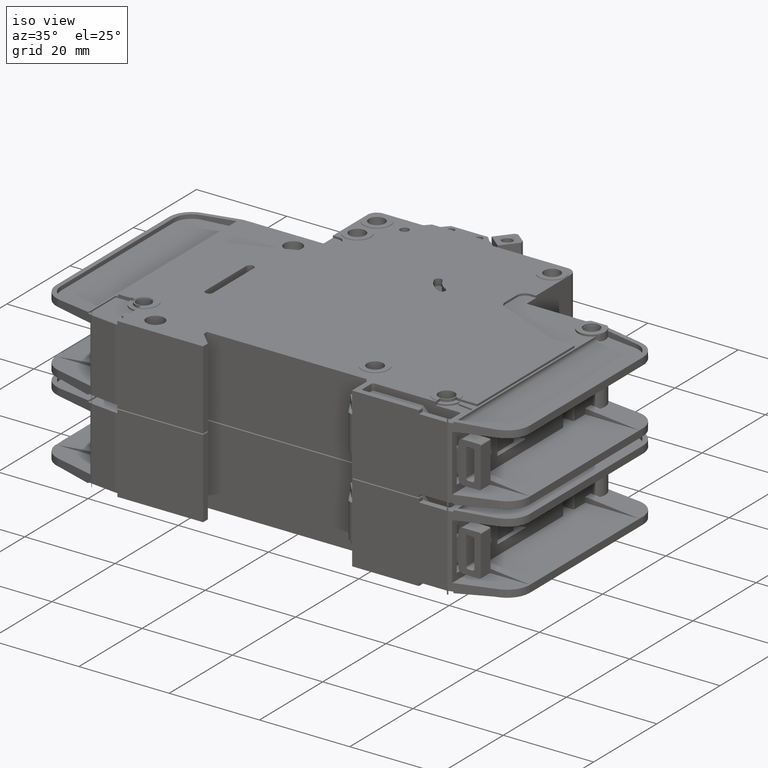
[diagram: clean part render]
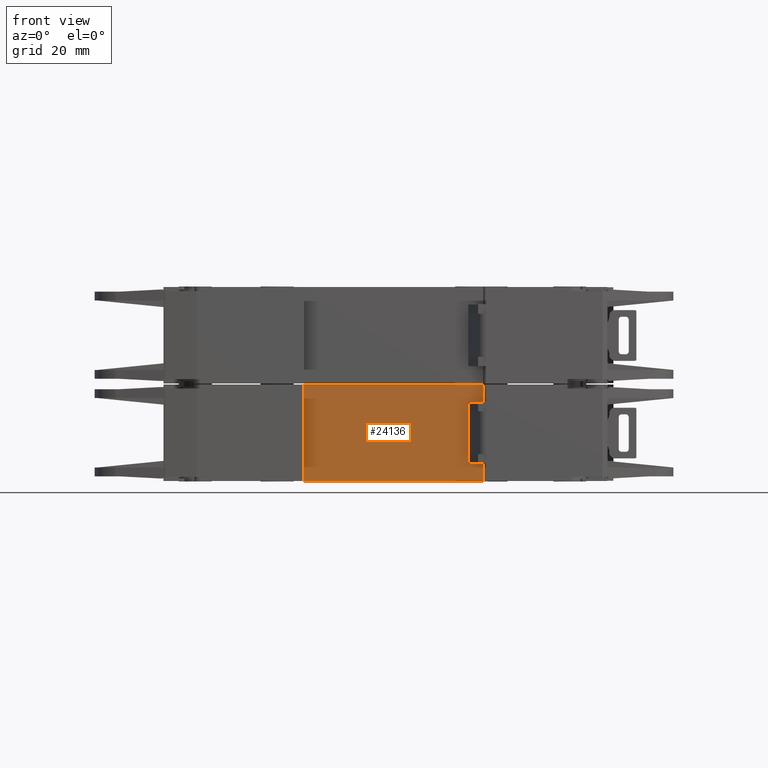
[diagram: tour spotlight — one face highlighted and labeled with its STEP entity id]
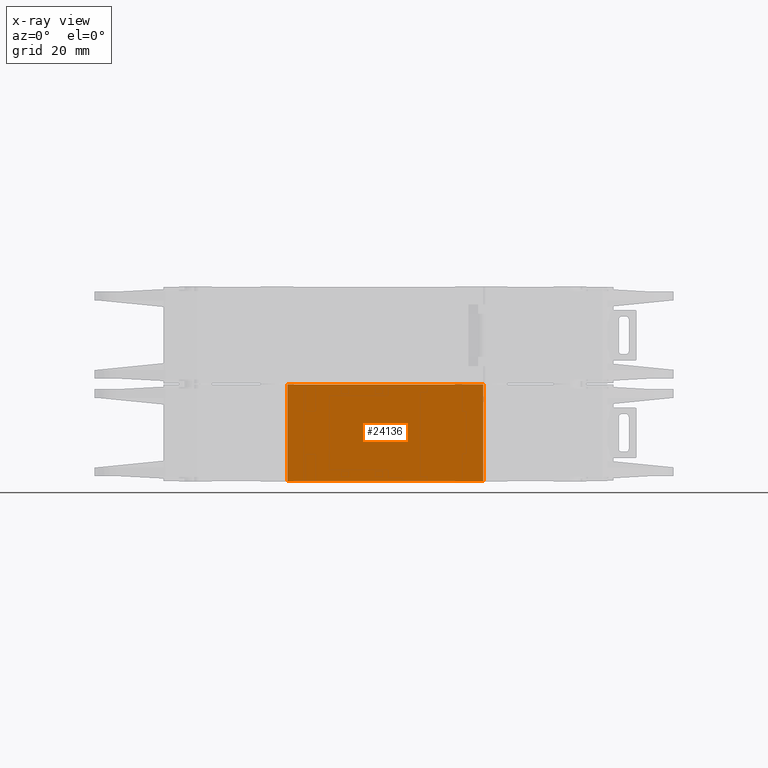
[diagram: x-ray of the same camera — body ghosted, this tour face saturated]
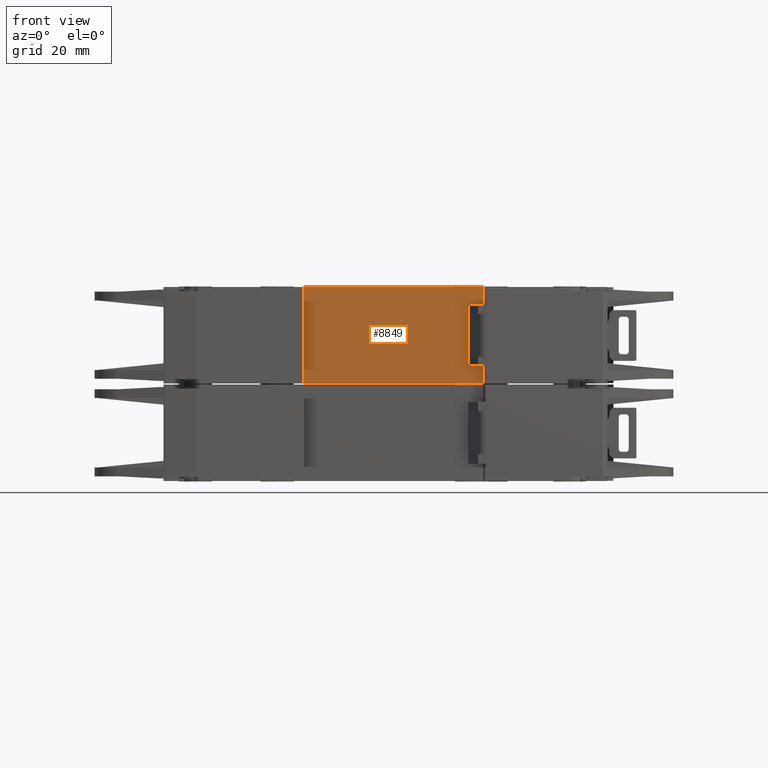
[diagram: tour spotlight — one face highlighted and labeled with its STEP entity id]
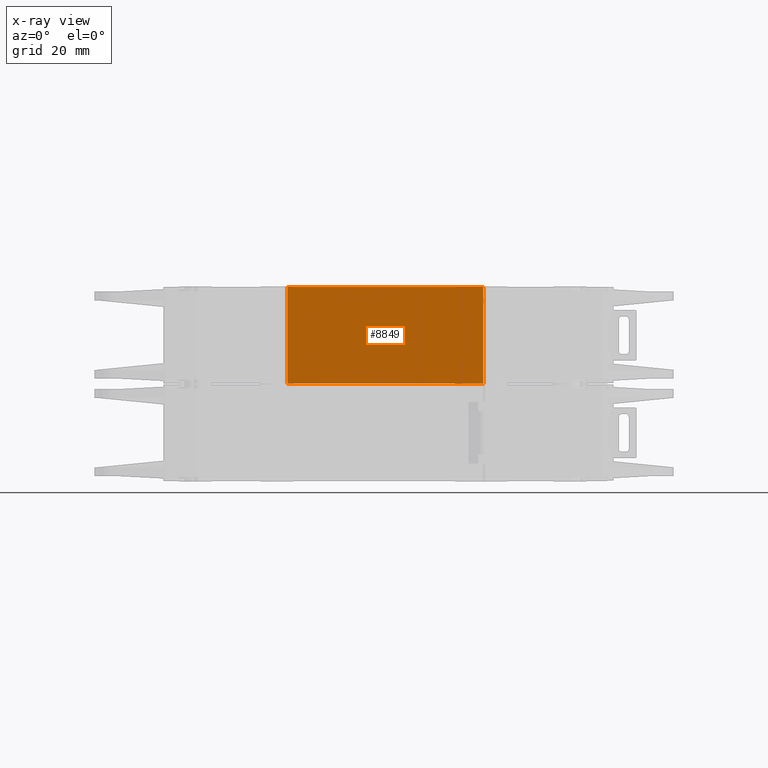
[diagram: x-ray of the same camera — body ghosted, this tour face saturated]
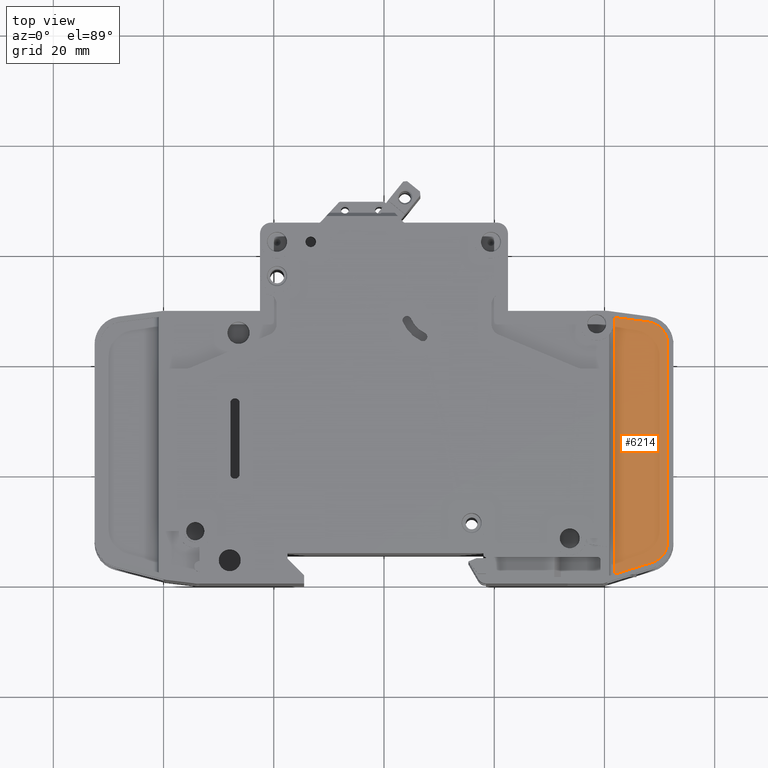
[diagram: tour spotlight — one face highlighted and labeled with its STEP entity id]
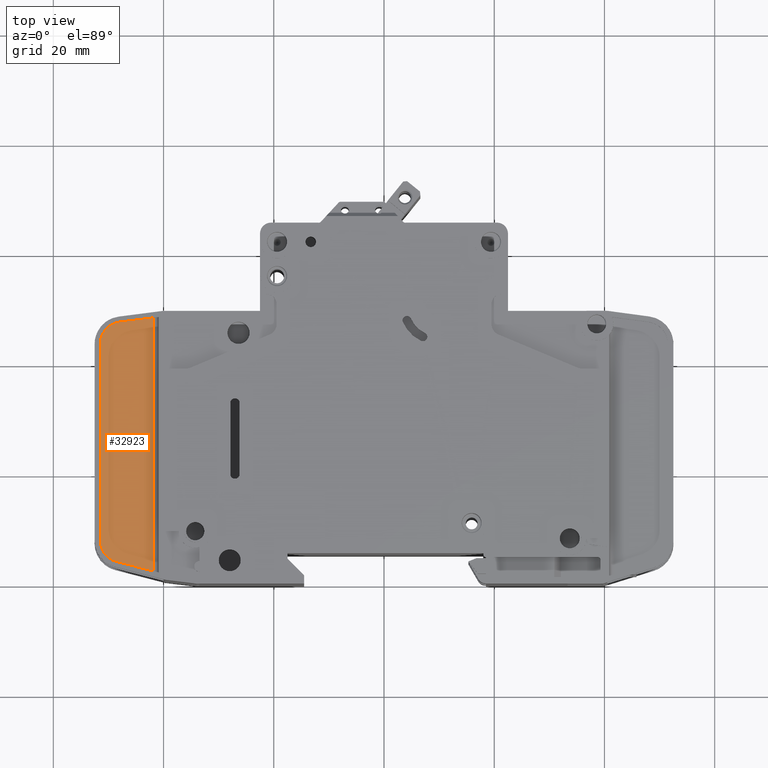
[diagram: tour spotlight — one face highlighted and labeled with its STEP entity id]
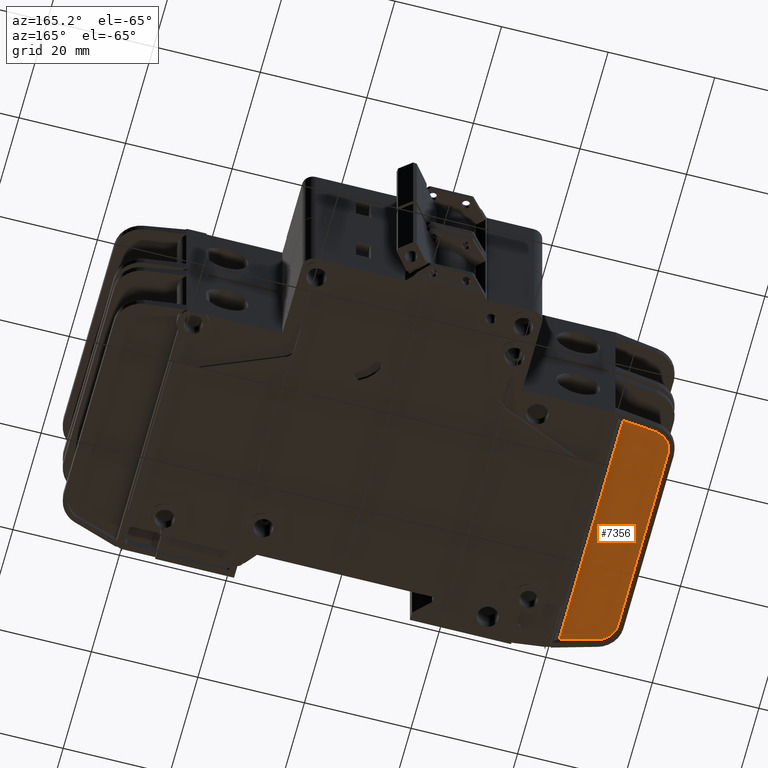
[diagram: tour spotlight — one face highlighted and labeled with its STEP entity id]
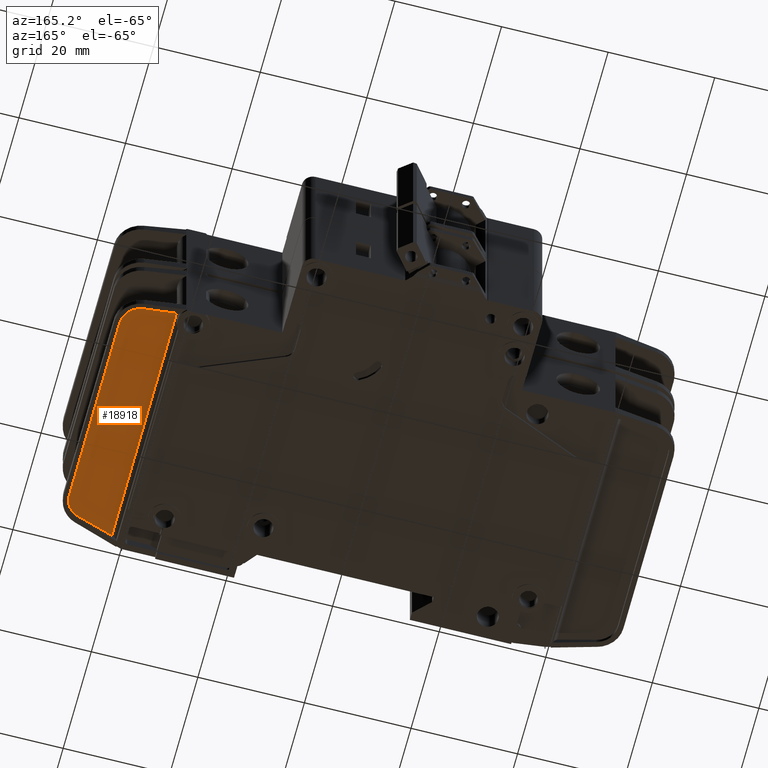
[diagram: tour spotlight — one face highlighted and labeled with its STEP entity id]
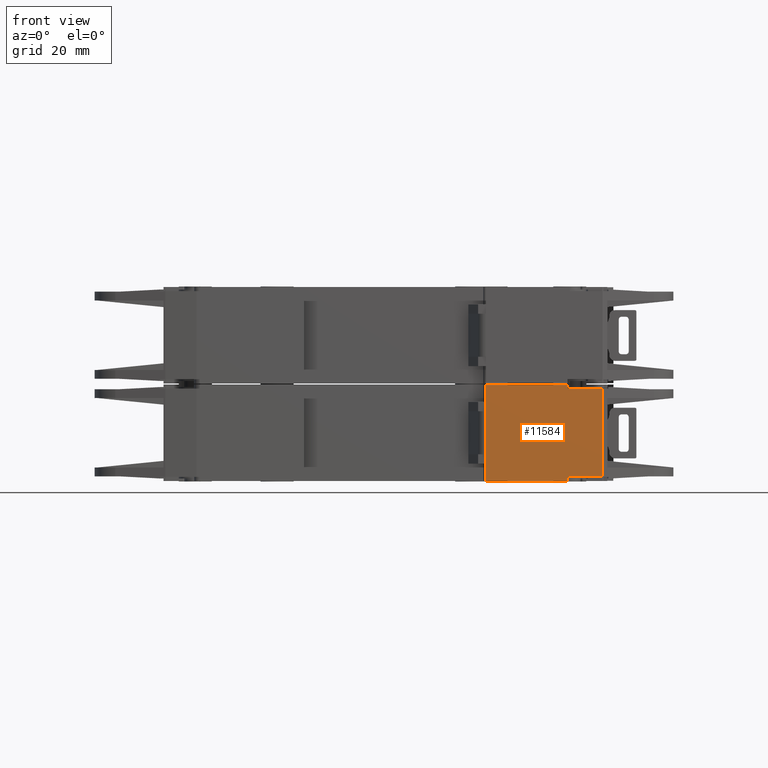
[diagram: tour spotlight — one face highlighted and labeled with its STEP entity id]
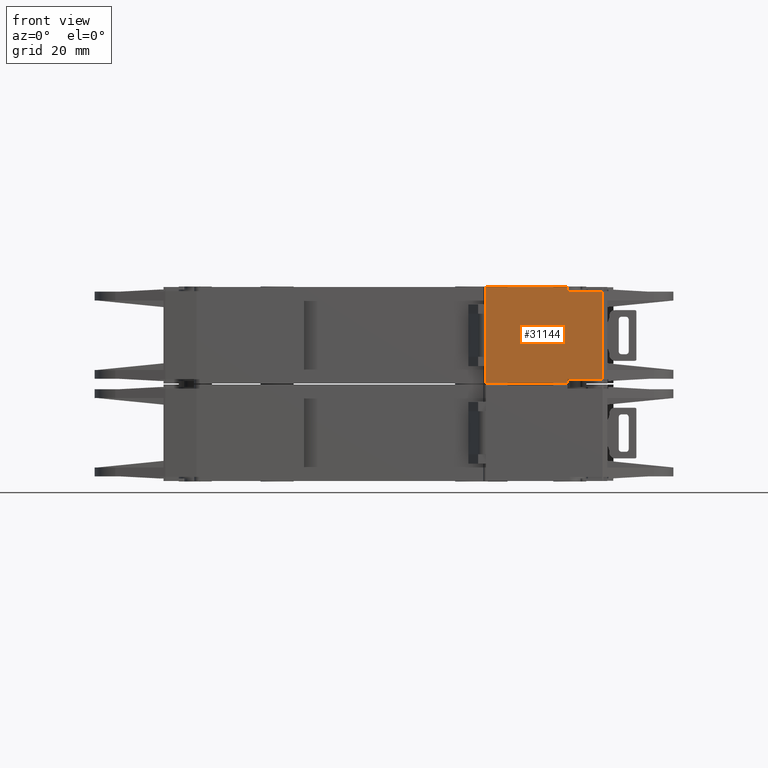
[diagram: tour spotlight — one face highlighted and labeled with its STEP entity id]
A machine part: a face-by-face anatomy tour. The part has 1568 B-rep faces; the first image is the clean iso view, then the 8 largest visible faces are spotlighted one at a time (largest first), each with its STEP entity span.

Face 1 — front view, entity #24136. An x-ray twin of the same camera follows (body ghosted, this face saturated) — the face is partly hidden behind the body. In plain terms, the highlighted planar face has unit normal (0, 1, -0).
Definition (entity closure, byte-faithful):
#119 = AXIS2_PLACEMENT_3D ( 'NONE', #14255, #48784, #26044 ) ;
#2650 = LINE ( 'NONE', #5789, #32858 ) ;
#3861 = VECTOR ( 'NONE', #18849, 1000.000000000000000 ) ;
#5789 = CARTESIAN_POINT ( 'NONE',  ( 58.00000000000000700, 5.500000000000038200, -8.949999999999999300 ) ) ;
#5883 = DIRECTION ( 'NONE',  ( -0.0000000000000000000, -0.0000000000000000000, -1.000000000000000000 ) ) ;
#6616 = VERTEX_POINT ( 'NONE', #16865 ) ;
#7417 = CARTESIAN_POINT ( 'NONE',  ( 58.00000000000000700, 5.500000000000038200, -8.949999999999999300 ) ) ;
#8610 = EDGE_CURVE ( 'NONE', #42969, #6616, #23976, .T. ) ;
#9029 = EDGE_CURVE ( 'NONE', #47614, #42969, #34703, .T. ) ;
#14255 = CARTESIAN_POINT ( 'NONE',  ( 3.342964967192980400E-014, 5.500000000000409500, -8.949999999999999300 ) ) ;
#14584 = PLANE ( 'NONE',  #119 ) ;
#15113 = CARTESIAN_POINT ( 'NONE',  ( 3.342964967192980400E-014, 5.500000000000409500, -26.45000000000000300 ) ) ;
#15964 = CARTESIAN_POINT ( 'NONE',  ( 22.50000000000023800, 5.500000000000264700, -26.45000000000000300 ) ) ;
#16516 = CARTESIAN_POINT ( 'NONE',  ( 3.342964967192980400E-014, 5.500000000000409500, -8.949999999999999300 ) ) ;
#16865 = CARTESIAN_POINT ( 'NONE',  ( 58.00000000000000700, 5.500000000000038200, -26.45000000000000300 ) ) ;
#18849 = DIRECTION ( 'NONE',  ( 1.000000000000000000, -6.401373953604597600E-015, 0.0000000000000000000 ) ) ;
#20058 = EDGE_LOOP ( 'NONE', ( #22098, #30878, #46913, #46366 ) ) ;
#22098 = ORIENTED_EDGE ( 'NONE', *, *, #8610, .T. ) ;
#23201 = VERTEX_POINT ( 'NONE', #7417 ) ;
#23976 = LINE ( 'NONE', #15113, #3861 ) ;
#24136 = ADVANCED_FACE ( 'NONE', ( #36250 ), #14584, .F. ) ;
#24607 = VECTOR ( 'NONE', #5883, 1000.000000000000000 ) ;
#26044 = DIRECTION ( 'NONE',  ( -1.000000000000000000, 6.401373953604598300E-015, 0.0000000000000000000 ) ) ;
#28492 = DIRECTION ( 'NONE',  ( -0.0000000000000000000, -0.0000000000000000000, -1.000000000000000000 ) ) ;
#30878 = ORIENTED_EDGE ( 'NONE', *, *, #38446, .F. ) ;
#31361 = CARTESIAN_POINT ( 'NONE',  ( 22.50000000000023800, 5.500000000000264700, -8.949999999999999300 ) ) ;
#32350 = EDGE_CURVE ( 'NONE', #47614, #23201, #44738, .T. ) ;
#32858 = VECTOR ( 'NONE', #28492, 1000.000000000000000 ) ;
#34640 = VECTOR ( 'NONE', #39338, 1000.000000000000000 ) ;
#34703 = LINE ( 'NONE', #43691, #24607 ) ;
#36250 = FACE_OUTER_BOUND ( 'NONE', #20058, .T. ) ;
#38446 = EDGE_CURVE ( 'NONE', #23201, #6616, #2650, .T. ) ;
#39338 = DIRECTION ( 'NONE',  ( 1.000000000000000000, -6.401373953604597600E-015, 0.0000000000000000000 ) ) ;
#42969 = VERTEX_POINT ( 'NONE', #15964 ) ;
#43691 = CARTESIAN_POINT ( 'NONE',  ( 22.50000000000023800, 5.500000000000264700, -8.949999999999999300 ) ) ;
#44738 = LINE ( 'NONE', #16516, #34640 ) ;
#46366 = ORIENTED_EDGE ( 'NONE', *, *, #9029, .T. ) ;
#46913 = ORIENTED_EDGE ( 'NONE', *, *, #32350, .F. ) ;
#47614 = VERTEX_POINT ( 'NONE', #31361 ) ;
#48784 = DIRECTION ( 'NONE',  ( 6.401373953604598300E-015, 1.000000000000000000, -0.0000000000000000000 ) ) ;

Face 2 — front view, entity #8849. An x-ray twin of the same camera follows (body ghosted, this face saturated) — the face is partly hidden behind the body. In plain terms, the highlighted planar face has unit normal (0, 1, -0).
Definition (entity closure, byte-faithful):
#899 = DIRECTION ( 'NONE',  ( 1.000000000000000000, -6.401373953604597600E-015, 0.0000000000000000000 ) ) ;
#1002 = VECTOR ( 'NONE', #46928, 1000.000000000000000 ) ;
#2508 = VECTOR ( 'NONE', #12513, 1000.000000000000000 ) ;
#3638 = EDGE_CURVE ( 'NONE', #18141, #33290, #43248, .T. ) ;
#7632 = EDGE_CURVE ( 'NONE', #18141, #32505, #41328, .T. ) ;
#8383 = CARTESIAN_POINT ( 'NONE',  ( 22.50000000000024200, 5.500000000000264700, -8.750000000000000000 ) ) ;
#8737 = CARTESIAN_POINT ( 'NONE',  ( 58.00000000000000700, 5.500000000000038200, 8.750000000000000000 ) ) ;
#8849 = ADVANCED_FACE ( 'NONE', ( #24029 ), #28068, .F. ) ;
#12513 = DIRECTION ( 'NONE',  ( -0.0000000000000000000, -0.0000000000000000000, -1.000000000000000000 ) ) ;
#12951 = VECTOR ( 'NONE', #38894, 1000.000000000000000 ) ;
#13090 = DIRECTION ( 'NONE',  ( 6.401373953604598300E-015, 1.000000000000000000, -0.0000000000000000000 ) ) ;
#13412 = ORIENTED_EDGE ( 'NONE', *, *, #40648, .F. ) ;
#15069 = CARTESIAN_POINT ( 'NONE',  ( 22.50000000000024200, 5.500000000000264700, 8.750000000000000000 ) ) ;
#18141 = VERTEX_POINT ( 'NONE', #15069 ) ;
#20317 = CARTESIAN_POINT ( 'NONE',  ( 3.520755674482790200E-014, 5.500000000000409500, 8.750000000000000000 ) ) ;
#20410 = VECTOR ( 'NONE', #899, 1000.000000000000000 ) ;
#22627 = ORIENTED_EDGE ( 'NONE', *, *, #37649, .T. ) ;
#24029 = FACE_OUTER_BOUND ( 'NONE', #29301, .T. ) ;
#24363 = CARTESIAN_POINT ( 'NONE',  ( 3.520755674482790200E-014, 5.500000000000409500, 8.750000000000000000 ) ) ;
#25169 = VERTEX_POINT ( 'NONE', #36895 ) ;
#27389 = CARTESIAN_POINT ( 'NONE',  ( 3.520755674482790200E-014, 5.500000000000409500, -8.750000000000000000 ) ) ;
#28068 = PLANE ( 'NONE',  #47238 ) ;
#28203 = LINE ( 'NONE', #27389, #20410 ) ;
#29301 = EDGE_LOOP ( 'NONE', ( #22627, #13412, #46486, #34581 ) ) ;
#32505 = VERTEX_POINT ( 'NONE', #48744 ) ;
#32712 = LINE ( 'NONE', #8737, #2508 ) ;
#33290 = VERTEX_POINT ( 'NONE', #8383 ) ;
#34581 = ORIENTED_EDGE ( 'NONE', *, *, #3638, .T. ) ;
#36895 = CARTESIAN_POINT ( 'NONE',  ( 58.00000000000000700, 5.500000000000038200, -8.750000000000000000 ) ) ;
#37649 = EDGE_CURVE ( 'NONE', #33290, #25169, #28203, .T. ) ;
#38894 = DIRECTION ( 'NONE',  ( -0.0000000000000000000, -0.0000000000000000000, -1.000000000000000000 ) ) ;
#39673 = DIRECTION ( 'NONE',  ( -1.000000000000000000, 6.401373953604598300E-015, 0.0000000000000000000 ) ) ;
#40648 = EDGE_CURVE ( 'NONE', #32505, #25169, #32712, .T. ) ;
#41328 = LINE ( 'NONE', #20317, #1002 ) ;
#42678 = CARTESIAN_POINT ( 'NONE',  ( 22.50000000000024200, 5.500000000000264700, 8.750000000000000000 ) ) ;
#43248 = LINE ( 'NONE', #42678, #12951 ) ;
#46486 = ORIENTED_EDGE ( 'NONE', *, *, #7632, .F. ) ;
#46928 = DIRECTION ( 'NONE',  ( 1.000000000000000000, -6.401373953604597600E-015, 0.0000000000000000000 ) ) ;
#47238 = AXIS2_PLACEMENT_3D ( 'NONE', #24363, #13090, #39673 ) ;
#48744 = CARTESIAN_POINT ( 'NONE',  ( 58.00000000000000700, 5.500000000000038200, 8.750000000000000000 ) ) ;

Face 3 — top view, entity #6214. In plain terms, the highlighted planar face has unit normal (-0, 0, 1).
Definition (entity closure, byte-faithful):
#67 = EDGE_CURVE ( 'NONE', #6031, #5735, #30997, .T. ) ;
#1495 = VERTEX_POINT ( 'NONE', #41371 ) ;
#1987 = ORIENTED_EDGE ( 'NONE', *, *, #32513, .T. ) ;
#3750 = VECTOR ( 'NONE', #18286, 1000.000000000000000 ) ;
#3983 = LINE ( 'NONE', #46793, #31827 ) ;
#4940 = EDGE_CURVE ( 'NONE', #5735, #6924, #3983, .T. ) ;
#4942 = LINE ( 'NONE', #33656, #3750 ) ;
#5458 = DIRECTION ( 'NONE',  ( -0.0000000000000000000, 0.0000000000000000000, 1.000000000000000000 ) ) ;
#5735 = VERTEX_POINT ( 'NONE', #46933 ) ;
#6031 = VERTEX_POINT ( 'NONE', #25206 ) ;
#6214 = ADVANCED_FACE ( 'NONE', ( #8579 ), #22659, .T. ) ;
#6924 = VERTEX_POINT ( 'NONE', #8098 ) ;
#6980 = LINE ( 'NONE', #12826, #36034 ) ;
#7458 = ORIENTED_EDGE ( 'NONE', *, *, #45788, .T. ) ;
#7609 = DIRECTION ( 'NONE',  ( -0.0000000000000000000, 0.0000000000000000000, 1.000000000000000000 ) ) ;
#8098 = CARTESIAN_POINT ( 'NONE',  ( 88.68904278847249100, 3.860862688887578600, 7.000000000000000000 ) ) ;
#8532 = CARTESIAN_POINT ( 'NONE',  ( 81.90000000000306100, 1.435867789140570700, 7.000000000000000000 ) ) ;
#8579 = FACE_OUTER_BOUND ( 'NONE', #49178, .T. ) ;
#11075 = VERTEX_POINT ( 'NONE', #21371 ) ;
#12663 = CARTESIAN_POINT ( 'NONE',  ( 87.50000000000339600, 43.52402657815239500, 7.000000000000000000 ) ) ;
#12746 = DIRECTION ( 'NONE',  ( 0.9547963541768541600, 0.2972606971171723500, 0.0000000000000000000 ) ) ;
#12826 = CARTESIAN_POINT ( 'NONE',  ( 91.50000000000395100, 0.0000000000000000000, 7.000000000000000000 ) ) ;
#13474 = AXIS2_PLACEMENT_3D ( 'NONE', #28163, #5458, #31949 ) ;
#15051 = CARTESIAN_POINT ( 'NONE',  ( 0.0000000000000000000, 0.0000000000000000000, 7.000000000000000000 ) ) ;
#16443 = DIRECTION ( 'NONE',  ( 1.000000000000000000, 0.0000000000000000000, 0.0000000000000000000 ) ) ;
#18286 = DIRECTION ( 'NONE',  ( -0.9911796891102210300, 0.1325248048305129300, 0.0000000000000000000 ) ) ;
#18816 = EDGE_CURVE ( 'NONE', #6924, #11075, #41122, .T. ) ;
#20432 = DIRECTION ( 'NONE',  ( 0.0000000000000000000, 1.000000000000000000, -0.0000000000000000000 ) ) ;
#21371 = CARTESIAN_POINT ( 'NONE',  ( 91.50000000000395100, 7.680048105595450800, 7.000000000000000000 ) ) ;
#22659 = PLANE ( 'NONE',  #44883 ) ;
#25206 = CARTESIAN_POINT ( 'NONE',  ( 81.90000000000317500, 48.30836483603661700, 7.000000000000000000 ) ) ;
#26078 = VERTEX_POINT ( 'NONE', #31319 ) ;
#27605 = DIRECTION ( 'NONE',  ( -2.529597909461247700E-015, -1.000000000000000000, 0.0000000000000000000 ) ) ;
#28163 = CARTESIAN_POINT ( 'NONE',  ( 87.50000000000339600, 7.680048105595450800, 7.000000000000000000 ) ) ;
#29211 = ORIENTED_EDGE ( 'NONE', *, *, #18816, .T. ) ;
#29815 = VECTOR ( 'NONE', #27605, 1000.000000000000000 ) ;
#30997 = LINE ( 'NONE', #8532, #29815 ) ;
#31319 = CARTESIAN_POINT ( 'NONE',  ( 91.50000000000395100, 43.52402657815239500, 7.000000000000000000 ) ) ;
#31827 = VECTOR ( 'NONE', #12746, 1000.000000000000000 ) ;
#31949 = DIRECTION ( 'NONE',  ( 1.000000000000000000, 0.0000000000000000000, 0.0000000000000000000 ) ) ;
#32513 = EDGE_CURVE ( 'NONE', #1495, #6031, #4942, .T. ) ;
#33656 = CARTESIAN_POINT ( 'NONE',  ( 7.783983768871183700, 58.21798132007016600, 7.000000000000000000 ) ) ;
#34159 = DIRECTION ( 'NONE',  ( 1.000000000000000000, 0.0000000000000000000, 0.0000000000000000000 ) ) ;
#35059 = ORIENTED_EDGE ( 'NONE', *, *, #43031, .T. ) ;
#36034 = VECTOR ( 'NONE', #20432, 1000.000000000000000 ) ;
#36289 = ORIENTED_EDGE ( 'NONE', *, *, #4940, .T. ) ;
#39256 = DIRECTION ( 'NONE',  ( -0.0000000000000000000, 0.0000000000000000000, 1.000000000000000000 ) ) ;
#39680 = AXIS2_PLACEMENT_3D ( 'NONE', #12663, #39256, #16443 ) ;
#41122 = CIRCLE ( 'NONE', #13474, 4.000000000000558700 ) ;
#41371 = CARTESIAN_POINT ( 'NONE',  ( 88.03009921932518000, 47.48874533459019900, 7.000000000000000000 ) ) ;
#43031 = EDGE_CURVE ( 'NONE', #26078, #1495, #46729, .T. ) ;
#44883 = AXIS2_PLACEMENT_3D ( 'NONE', #15051, #7609, #34159 ) ;
#45788 = EDGE_CURVE ( 'NONE', #11075, #26078, #6980, .T. ) ;
#45789 = ORIENTED_EDGE ( 'NONE', *, *, #67, .T. ) ;
#46729 = CIRCLE ( 'NONE', #39680, 3.999999999998740600 ) ;
#46793 = CARTESIAN_POINT ( 'NONE',  ( 6.741108373171290000, -21.65232659492135500, 7.000000000000000000 ) ) ;
#46933 = CARTESIAN_POINT ( 'NONE',  ( 81.90000000000306100, 1.747201924233124300, 7.000000000000000000 ) ) ;
#49178 = EDGE_LOOP ( 'NONE', ( #1987, #45789, #36289, #29211, #7458, #35059 ) ) ;

Face 4 — top view, entity #32923. In plain terms, the highlighted planar face has unit normal (-0, 0, 1).
Definition (entity closure, byte-faithful):
#173 = EDGE_CURVE ( 'NONE', #14633, #34577, #16109, .T. ) ;
#1494 = CARTESIAN_POINT ( 'NONE',  ( -7.500000000020468100, 43.50063800076245700, 7.000000000000000000 ) ) ;
#1751 = EDGE_LOOP ( 'NONE', ( #24028, #37489, #22584, #44324, #13104, #47665 ) ) ;
#2660 = VECTOR ( 'NONE', #11168, 1000.000000000000000 ) ;
#4025 = DIRECTION ( 'NONE',  ( 0.0000000000000000000, 1.000000000000000000, -0.0000000000000000000 ) ) ;
#5288 = DIRECTION ( 'NONE',  ( 1.000000000000000000, 0.0000000000000000000, 0.0000000000000000000 ) ) ;
#5721 = DIRECTION ( 'NONE',  ( -0.0000000000000000000, 0.0000000000000000000, 1.000000000000000000 ) ) ;
#6290 = DIRECTION ( 'NONE',  ( -0.0000000000000000000, 0.0000000000000000000, 1.000000000000000000 ) ) ;
#7362 = CIRCLE ( 'NONE', #40751, 4.000000000000555100 ) ;
#8895 = CARTESIAN_POINT ( 'NONE',  ( -6.122555896739948300, 47.71020433664585900, 7.000000000000000000 ) ) ;
#11168 = DIRECTION ( 'NONE',  ( 0.9683673327687439800, -0.2495289739215643700, 0.0000000000000000000 ) ) ;
#11440 = CARTESIAN_POINT ( 'NONE',  ( -1.900000000000074300, 48.38040457674583900, 7.000000000000000000 ) ) ;
#11632 = CARTESIAN_POINT ( 'NONE',  ( 0.4377629412868707100, 1.698862160881640300, 7.000000000000000000 ) ) ;
#12653 = LINE ( 'NONE', #11632, #2660 ) ;
#13104 = ORIENTED_EDGE ( 'NONE', *, *, #23902, .T. ) ;
#13489 = AXIS2_PLACEMENT_3D ( 'NONE', #28426, #5721, #32216 ) ;
#14295 = VECTOR ( 'NONE', #35487, 1000.000000000000000 ) ;
#14333 = VERTEX_POINT ( 'NONE', #19552 ) ;
#14633 = VERTEX_POINT ( 'NONE', #40516 ) ;
#16109 = CIRCLE ( 'NONE', #13489, 4.000000000000471600 ) ;
#18797 = EDGE_CURVE ( 'NONE', #21087, #14333, #23277, .T. ) ;
#18880 = CARTESIAN_POINT ( 'NONE',  ( -1.900000000000075000, 2.301257107790177800, 7.000000000000000000 ) ) ;
#19552 = CARTESIAN_POINT ( 'NONE',  ( -8.009136931738993300, 47.46810313416496300, 7.000000000000000000 ) ) ;
#19611 = FACE_OUTER_BOUND ( 'NONE', #1751, .T. ) ;
#21087 = VERTEX_POINT ( 'NONE', #29360 ) ;
#22584 = ORIENTED_EDGE ( 'NONE', *, *, #18797, .T. ) ;
#23277 = LINE ( 'NONE', #8895, #32223 ) ;
#23902 = EDGE_CURVE ( 'NONE', #41242, #14633, #45791, .T. ) ;
#24028 = ORIENTED_EDGE ( 'NONE', *, *, #39292, .T. ) ;
#24907 = CARTESIAN_POINT ( 'NONE',  ( -11.50000000002102300, 43.50063800076245700, 7.000000000000000000 ) ) ;
#27995 = DIRECTION ( 'NONE',  ( -0.0000000000000000000, 0.0000000000000000000, 1.000000000000000000 ) ) ;
#28030 = VERTEX_POINT ( 'NONE', #18880 ) ;
#28426 = CARTESIAN_POINT ( 'NONE',  ( -7.500000000020464500, 7.874929485331208800, 7.000000000000000000 ) ) ;
#28989 = PLANE ( 'NONE',  #39650 ) ;
#29360 = CARTESIAN_POINT ( 'NONE',  ( -1.900000000000073400, 48.25207656009055100, 7.000000000000000000 ) ) ;
#30459 = EDGE_CURVE ( 'NONE', #28030, #21087, #35420, .T. ) ;
#31714 = CARTESIAN_POINT ( 'NONE',  ( -11.50000000002102500, 5.599697747801625600E-016, 7.000000000000000000 ) ) ;
#32216 = DIRECTION ( 'NONE',  ( 1.000000000000000000, 0.0000000000000000000, 0.0000000000000000000 ) ) ;
#32223 = VECTOR ( 'NONE', #42925, 1000.000000000000100 ) ;
#32302 = CARTESIAN_POINT ( 'NONE',  ( -8.498115895706767700, 4.001460154255849700, 7.000000000000000000 ) ) ;
#32791 = DIRECTION ( 'NONE',  ( 1.000000000000000000, 0.0000000000000000000, 0.0000000000000000000 ) ) ;
#32923 = ADVANCED_FACE ( 'NONE', ( #19611 ), #28989, .T. ) ;
#34577 = VERTEX_POINT ( 'NONE', #32302 ) ;
#35420 = LINE ( 'NONE', #11440, #40772 ) ;
#35487 = DIRECTION ( 'NONE',  ( -4.869302389383815500E-017, -1.000000000000000000, 0.0000000000000000000 ) ) ;
#37489 = ORIENTED_EDGE ( 'NONE', *, *, #30459, .T. ) ;
#38317 = EDGE_CURVE ( 'NONE', #14333, #41242, #7362, .T. ) ;
#39292 = EDGE_CURVE ( 'NONE', #34577, #28030, #12653, .T. ) ;
#39650 = AXIS2_PLACEMENT_3D ( 'NONE', #44096, #6290, #32791 ) ;
#40516 = CARTESIAN_POINT ( 'NONE',  ( -11.50000000002102500, 7.874929485331208800, 7.000000000000000000 ) ) ;
#40751 = AXIS2_PLACEMENT_3D ( 'NONE', #1494, #27995, #5288 ) ;
#40772 = VECTOR ( 'NONE', #4025, 1000.000000000000000 ) ;
#41242 = VERTEX_POINT ( 'NONE', #24907 ) ;
#42925 = DIRECTION ( 'NONE',  ( -0.9918662833504926500, -0.1272842329296136600, 0.0000000000000000000 ) ) ;
#44096 = CARTESIAN_POINT ( 'NONE',  ( 0.0000000000000000000, 0.0000000000000000000, 7.000000000000000000 ) ) ;
#44324 = ORIENTED_EDGE ( 'NONE', *, *, #38317, .T. ) ;
#45791 = LINE ( 'NONE', #31714, #14295 ) ;
#47665 = ORIENTED_EDGE ( 'NONE', *, *, #173, .T. ) ;

Face 5 — auxiliary view, entity #7356. In plain terms, the highlighted planar face has unit normal (-0, 0, 1).
Definition (entity closure, byte-faithful):
#8 = ORIENTED_EDGE ( 'NONE', *, *, #773, .F. ) ;
#138 = CARTESIAN_POINT ( 'NONE',  ( -8.009136931738995100, 47.46810313416496300, -24.69999999999999900 ) ) ;
#773 = EDGE_CURVE ( 'NONE', #36968, #7483, #783, .T. ) ;
#783 = CIRCLE ( 'NONE', #3091, 4.000000000000555100 ) ;
#1361 = CARTESIAN_POINT ( 'NONE',  ( -11.50000000002102700, 5.599697747801625600E-016, -24.69999999999999900 ) ) ;
#3091 = AXIS2_PLACEMENT_3D ( 'NONE', #16098, #42683, #19893 ) ;
#3600 = DIRECTION ( 'NONE',  ( 1.000000000000000000, 0.0000000000000000000, 0.0000000000000000000 ) ) ;
#7024 = CARTESIAN_POINT ( 'NONE',  ( -6.122555896739950000, 47.71020433664585900, -24.69999999999999900 ) ) ;
#7356 = ADVANCED_FACE ( 'NONE', ( #33035 ), #29957, .F. ) ;
#7483 = VERTEX_POINT ( 'NONE', #8378 ) ;
#8378 = CARTESIAN_POINT ( 'NONE',  ( -11.50000000002102500, 43.50063800076245700, -24.69999999999999900 ) ) ;
#10970 = DIRECTION ( 'NONE',  ( -0.9918662833504926500, -0.1272842329296136600, 0.0000000000000000000 ) ) ;
#11473 = CARTESIAN_POINT ( 'NONE',  ( -8.498115895706769500, 4.001460154255849700, -24.69999999999999900 ) ) ;
#11939 = DIRECTION ( 'NONE',  ( -0.0000000000000000000, -1.000000000000000000, 0.0000000000000000000 ) ) ;
#12573 = ORIENTED_EDGE ( 'NONE', *, *, #47419, .F. ) ;
#13611 = DIRECTION ( 'NONE',  ( -0.0000000000000000000, 0.0000000000000000000, 1.000000000000000000 ) ) ;
#14156 = EDGE_LOOP ( 'NONE', ( #12573, #14499, #48908, #47750, #23332, #8 ) ) ;
#14499 = ORIENTED_EDGE ( 'NONE', *, *, #39240, .T. ) ;
#15034 = VECTOR ( 'NONE', #11939, 1000.000000000000000 ) ;
#15503 = CIRCLE ( 'NONE', #29436, 4.000000000000471600 ) ;
#16098 = CARTESIAN_POINT ( 'NONE',  ( -7.500000000020469800, 43.50063800076245700, -24.69999999999999900 ) ) ;
#16453 = EDGE_CURVE ( 'NONE', #44520, #35912, #25915, .T. ) ;
#17234 = VERTEX_POINT ( 'NONE', #23968 ) ;
#18572 = CARTESIAN_POINT ( 'NONE',  ( -1.777907072898100500E-015, 0.0000000000000000000, -24.69999999999999900 ) ) ;
#19893 = DIRECTION ( 'NONE',  ( 1.000000000000000000, 0.0000000000000000000, 0.0000000000000000000 ) ) ;
#22780 = LINE ( 'NONE', #7024, #41815 ) ;
#23332 = ORIENTED_EDGE ( 'NONE', *, *, #26094, .F. ) ;
#23968 = CARTESIAN_POINT ( 'NONE',  ( -1.900000000000075200, 48.25207656009055100, -24.69999999999999900 ) ) ;
#24716 = VECTOR ( 'NONE', #48786, 1000.000000000000000 ) ;
#25915 = LINE ( 'NONE', #36057, #24716 ) ;
#26094 = EDGE_CURVE ( 'NONE', #7483, #32561, #28000, .T. ) ;
#26291 = DIRECTION ( 'NONE',  ( -0.0000000000000000000, 0.0000000000000000000, 1.000000000000000000 ) ) ;
#27847 = DIRECTION ( 'NONE',  ( -4.869302389383815500E-017, -1.000000000000000000, 0.0000000000000000000 ) ) ;
#28000 = LINE ( 'NONE', #1361, #36884 ) ;
#29436 = AXIS2_PLACEMENT_3D ( 'NONE', #36383, #13611, #40210 ) ;
#29957 = PLANE ( 'NONE',  #40185 ) ;
#30996 = CARTESIAN_POINT ( 'NONE',  ( -1.900000000000076700, 2.301257107790177800, -24.69999999999999900 ) ) ;
#32561 = VERTEX_POINT ( 'NONE', #45436 ) ;
#33035 = FACE_OUTER_BOUND ( 'NONE', #14156, .T. ) ;
#34692 = CARTESIAN_POINT ( 'NONE',  ( -1.900000000000076100, 2.043577025575803700, -24.69999999999999900 ) ) ;
#35912 = VERTEX_POINT ( 'NONE', #30996 ) ;
#36057 = CARTESIAN_POINT ( 'NONE',  ( 0.4377629412868689300, 1.698862160881640300, -24.69999999999999900 ) ) ;
#36383 = CARTESIAN_POINT ( 'NONE',  ( -7.500000000020466300, 7.874929485331208800, -24.69999999999999900 ) ) ;
#36884 = VECTOR ( 'NONE', #27847, 1000.000000000000000 ) ;
#36968 = VERTEX_POINT ( 'NONE', #138 ) ;
#39240 = EDGE_CURVE ( 'NONE', #17234, #35912, #44172, .T. ) ;
#40185 = AXIS2_PLACEMENT_3D ( 'NONE', #18572, #26291, #3600 ) ;
#40210 = DIRECTION ( 'NONE',  ( 1.000000000000000000, 0.0000000000000000000, 0.0000000000000000000 ) ) ;
#41815 = VECTOR ( 'NONE', #10970, 1000.000000000000100 ) ;
#42683 = DIRECTION ( 'NONE',  ( -0.0000000000000000000, 0.0000000000000000000, 1.000000000000000000 ) ) ;
#44172 = LINE ( 'NONE', #34692, #15034 ) ;
#44520 = VERTEX_POINT ( 'NONE', #11473 ) ;
#45436 = CARTESIAN_POINT ( 'NONE',  ( -11.50000000002102700, 7.874929485331208800, -24.69999999999999900 ) ) ;
#47419 = EDGE_CURVE ( 'NONE', #17234, #36968, #22780, .T. ) ;
#47750 = ORIENTED_EDGE ( 'NONE', *, *, #48933, .F. ) ;
#48786 = DIRECTION ( 'NONE',  ( 0.9683673327687439800, -0.2495289739215643700, 0.0000000000000000000 ) ) ;
#48908 = ORIENTED_EDGE ( 'NONE', *, *, #16453, .F. ) ;
#48933 = EDGE_CURVE ( 'NONE', #32561, #44520, #15503, .T. ) ;

Face 6 — auxiliary view, entity #18918. In plain terms, the highlighted planar face has unit normal (-0, 0, 1).
Definition (entity closure, byte-faithful):
#2147 = CARTESIAN_POINT ( 'NONE',  ( -1.777907072898100500E-015, 0.0000000000000000000, -24.69999999999999900 ) ) ;
#2893 = DIRECTION ( 'NONE',  ( -0.9911796891102210300, 0.1325248048305129300, 0.0000000000000000000 ) ) ;
#3756 = CIRCLE ( 'NONE', #32088, 4.000000000000558700 ) ;
#5337 = VECTOR ( 'NONE', #2893, 1000.000000000000000 ) ;
#5932 = DIRECTION ( 'NONE',  ( 1.000000000000000000, 0.0000000000000000000, 0.0000000000000000000 ) ) ;
#6872 = EDGE_CURVE ( 'NONE', #44097, #44490, #47092, .T. ) ;
#9509 = ORIENTED_EDGE ( 'NONE', *, *, #6872, .F. ) ;
#10973 = CARTESIAN_POINT ( 'NONE',  ( 88.68904278847249100, 3.860862688887578600, -24.69999999999999900 ) ) ;
#11349 = DIRECTION ( 'NONE',  ( -0.0000000000000000000, 0.0000000000000000000, 1.000000000000000000 ) ) ;
#12676 = CARTESIAN_POINT ( 'NONE',  ( 81.90000000000317500, 45.17386397196136000, -24.69999999999999900 ) ) ;
#13008 = AXIS2_PLACEMENT_3D ( 'NONE', #40960, #18154, #44790 ) ;
#15247 = ORIENTED_EDGE ( 'NONE', *, *, #35741, .F. ) ;
#15357 = CARTESIAN_POINT ( 'NONE',  ( 6.741108373171288200, -21.65232659492135500, -24.69999999999999900 ) ) ;
#15358 = LINE ( 'NONE', #40666, #5337 ) ;
#16296 = ORIENTED_EDGE ( 'NONE', *, *, #31175, .T. ) ;
#16743 = VECTOR ( 'NONE', #19130, 1000.000000000000000 ) ;
#18154 = DIRECTION ( 'NONE',  ( -0.0000000000000000000, 0.0000000000000000000, 1.000000000000000000 ) ) ;
#18335 = CARTESIAN_POINT ( 'NONE',  ( 91.50000000000395100, 0.0000000000000000000, -24.69999999999999900 ) ) ;
#18918 = ADVANCED_FACE ( 'NONE', ( #29845 ), #43743, .F. ) ;
#19130 = DIRECTION ( 'NONE',  ( 0.9547963541768541600, 0.2972606971171723500, 0.0000000000000000000 ) ) ;
#19596 = CARTESIAN_POINT ( 'NONE',  ( 88.03009921932518000, 47.48874533459019900, -24.69999999999999900 ) ) ;
#22210 = DIRECTION ( 'NONE',  ( 0.0000000000000000000, 1.000000000000000000, -0.0000000000000000000 ) ) ;
#23217 = EDGE_CURVE ( 'NONE', #44490, #40490, #3756, .T. ) ;
#23758 = VERTEX_POINT ( 'NONE', #30070 ) ;
#25969 = ORIENTED_EDGE ( 'NONE', *, *, #28438, .F. ) ;
#28438 = EDGE_CURVE ( 'NONE', #31089, #23758, #15358, .T. ) ;
#28468 = ORIENTED_EDGE ( 'NONE', *, *, #23217, .F. ) ;
#28670 = DIRECTION ( 'NONE',  ( -0.0000000000000000000, 0.0000000000000000000, 1.000000000000000000 ) ) ;
#28866 = VECTOR ( 'NONE', #35402, 1000.000000000000000 ) ;
#29845 = FACE_OUTER_BOUND ( 'NONE', #36647, .T. ) ;
#30070 = CARTESIAN_POINT ( 'NONE',  ( 81.90000000000317500, 48.30836483603661700, -24.69999999999999900 ) ) ;
#31089 = VERTEX_POINT ( 'NONE', #19596 ) ;
#31098 = CARTESIAN_POINT ( 'NONE',  ( 91.50000000000395100, 43.52402657815239500, -24.69999999999999900 ) ) ;
#31175 = EDGE_CURVE ( 'NONE', #44097, #23758, #38950, .T. ) ;
#31828 = CARTESIAN_POINT ( 'NONE',  ( 81.90000000000306100, 1.747201924233124300, -24.69999999999999900 ) ) ;
#32088 = AXIS2_PLACEMENT_3D ( 'NONE', #34110, #11349, #37895 ) ;
#33660 = EDGE_CURVE ( 'NONE', #40490, #48746, #45730, .T. ) ;
#34110 = CARTESIAN_POINT ( 'NONE',  ( 87.50000000000339600, 7.680048105595450800, -24.69999999999999900 ) ) ;
#35402 = DIRECTION ( 'NONE',  ( 2.529597909461247700E-015, 1.000000000000000000, -0.0000000000000000000 ) ) ;
#35611 = VECTOR ( 'NONE', #22210, 1000.000000000000000 ) ;
#35741 = EDGE_CURVE ( 'NONE', #48746, #31089, #40830, .T. ) ;
#36399 = AXIS2_PLACEMENT_3D ( 'NONE', #2147, #28670, #5932 ) ;
#36647 = EDGE_LOOP ( 'NONE', ( #9509, #16296, #25969, #15247, #37463, #28468 ) ) ;
#37463 = ORIENTED_EDGE ( 'NONE', *, *, #33660, .F. ) ;
#37895 = DIRECTION ( 'NONE',  ( 1.000000000000000000, 0.0000000000000000000, 0.0000000000000000000 ) ) ;
#38950 = LINE ( 'NONE', #12676, #28866 ) ;
#40490 = VERTEX_POINT ( 'NONE', #45415 ) ;
#40666 = CARTESIAN_POINT ( 'NONE',  ( 7.783983768871182800, 58.21798132007016600, -24.69999999999999900 ) ) ;
#40830 = CIRCLE ( 'NONE', #13008, 3.999999999998740600 ) ;
#40960 = CARTESIAN_POINT ( 'NONE',  ( 87.50000000000339600, 43.52402657815239500, -24.69999999999999900 ) ) ;
#43743 = PLANE ( 'NONE',  #36399 ) ;
#44097 = VERTEX_POINT ( 'NONE', #31828 ) ;
#44490 = VERTEX_POINT ( 'NONE', #10973 ) ;
#44790 = DIRECTION ( 'NONE',  ( 1.000000000000000000, 0.0000000000000000000, 0.0000000000000000000 ) ) ;
#45415 = CARTESIAN_POINT ( 'NONE',  ( 91.50000000000395100, 7.680048105595450800, -24.69999999999999900 ) ) ;
#45730 = LINE ( 'NONE', #18335, #35611 ) ;
#47092 = LINE ( 'NONE', #15357, #16743 ) ;
#48746 = VERTEX_POINT ( 'NONE', #31098 ) ;

Face 7 — front view, entity #11584. In plain terms, the highlighted planar face has unit normal (-0, -1, 0).
Definition (entity closure, byte-faithful):
#421 = EDGE_CURVE ( 'NONE', #10294, #39016, #6656, .T. ) ;
#1247 = ORIENTED_EDGE ( 'NONE', *, *, #37805, .T. ) ;
#1905 = VERTEX_POINT ( 'NONE', #32873 ) ;
#2198 = EDGE_CURVE ( 'NONE', #1905, #30907, #15462, .T. ) ;
#2274 = CARTESIAN_POINT ( 'NONE',  ( 73.29999999999999700, -7.592810154696489300E-016, -8.949999999999999300 ) ) ;
#2401 = ORIENTED_EDGE ( 'NONE', *, *, #18021, .T. ) ;
#2468 = CARTESIAN_POINT ( 'NONE',  ( -1.777907071991433100E-015, 8.151842603365492200E-012, -26.45000000000000300 ) ) ;
#3214 = VERTEX_POINT ( 'NONE', #34393 ) ;
#3424 = ORIENTED_EDGE ( 'NONE', *, *, #18672, .T. ) ;
#3975 = LINE ( 'NONE', #36468, #31822 ) ;
#4698 = VECTOR ( 'NONE', #48193, 1000.000000000000000 ) ;
#5131 = AXIS2_PLACEMENT_3D ( 'NONE', #12899, #20503, #47123 ) ;
#6074 = DIRECTION ( 'NONE',  ( 0.0000000000000000000, 0.0000000000000000000, -1.000000000000000000 ) ) ;
#6604 = VERTEX_POINT ( 'NONE', #20685 ) ;
#6656 = LINE ( 'NONE', #44065, #25606 ) ;
#7099 = CARTESIAN_POINT ( 'NONE',  ( 79.50000000000001400, 3.469446951953614200E-014, -26.45000000000000300 ) ) ;
#7406 = LINE ( 'NONE', #18536, #27586 ) ;
#7867 = ORIENTED_EDGE ( 'NONE', *, *, #2198, .F. ) ;
#8561 = EDGE_CURVE ( 'NONE', #18215, #1905, #7406, .T. ) ;
#8742 = CARTESIAN_POINT ( 'NONE',  ( 73.29999999999999700, 3.469446951953614200E-014, -9.700000000000001100 ) ) ;
#9151 = VECTOR ( 'NONE', #26571, 1000.000000000000000 ) ;
#10267 = VECTOR ( 'NONE', #19121, 1000.000000000000000 ) ;
#10294 = VERTEX_POINT ( 'NONE', #8742 ) ;
#10379 = VERTEX_POINT ( 'NONE', #13012 ) ;
#10433 = ORIENTED_EDGE ( 'NONE', *, *, #421, .T. ) ;
#10516 = EDGE_CURVE ( 'NONE', #36535, #10379, #32188, .T. ) ;
#11108 = EDGE_CURVE ( 'NONE', #12296, #3214, #18385, .T. ) ;
#11584 = ADVANCED_FACE ( 'NONE', ( #37413 ), #16691, .T. ) ;
#11860 = ORIENTED_EDGE ( 'NONE', *, *, #44264, .T. ) ;
#11985 = VECTOR ( 'NONE', #21262, 1000.000000000000000 ) ;
#12296 = VERTEX_POINT ( 'NONE', #33092 ) ;
#12679 = CARTESIAN_POINT ( 'NONE',  ( -1.777907071991433100E-015, 8.151842603365492200E-012, -26.45000000000000300 ) ) ;
#12899 = CARTESIAN_POINT ( 'NONE',  ( -1.777907071991433100E-015, 8.151842603365492200E-012, -8.949999999999999300 ) ) ;
#13012 = CARTESIAN_POINT ( 'NONE',  ( 58.49999999999850800, -2.602085213965210600E-015, -26.45000000000000300 ) ) ;
#13977 = CARTESIAN_POINT ( 'NONE',  ( 58.49999999999850800, -2.602085213965210600E-015, -8.949999999999999300 ) ) ;
#14710 = LINE ( 'NONE', #13977, #4698 ) ;
#15462 = LINE ( 'NONE', #12679, #44587 ) ;
#15559 = CARTESIAN_POINT ( 'NONE',  ( 79.65206734769626000, -7.072514533011891400E-013, -8.949999999999999300 ) ) ;
#16229 = LINE ( 'NONE', #44640, #45370 ) ;
#16464 = DIRECTION ( 'NONE',  ( -1.000000000000000000, 1.112223995140649500E-013, 0.0000000000000000000 ) ) ;
#16691 = PLANE ( 'NONE',  #5131 ) ;
#16817 = CARTESIAN_POINT ( 'NONE',  ( 58.49999999999850800, -2.602085213965210600E-015, -8.949999999999999300 ) ) ;
#17444 = DIRECTION ( 'NONE',  ( 0.0000000000000000000, 0.0000000000000000000, 1.000000000000000000 ) ) ;
#18021 = EDGE_CURVE ( 'NONE', #18215, #45115, #16229, .T. ) ;
#18215 = VERTEX_POINT ( 'NONE', #15559 ) ;
#18385 = LINE ( 'NONE', #33029, #48755 ) ;
#18492 = ORIENTED_EDGE ( 'NONE', *, *, #47488, .T. ) ;
#18536 = CARTESIAN_POINT ( 'NONE',  ( 79.65206734769626000, -7.072514533011891400E-013, -8.949999999999999300 ) ) ;
#18590 = LINE ( 'NONE', #22726, #9151 ) ;
#18672 = EDGE_CURVE ( 'NONE', #6604, #10294, #30452, .T. ) ;
#19121 = DIRECTION ( 'NONE',  ( -1.000000000000000000, 0.0000000000000000000, 0.0000000000000000000 ) ) ;
#20415 = CARTESIAN_POINT ( 'NONE',  ( 73.29999999999999700, 3.469446951953614200E-014, -26.45000000000000300 ) ) ;
#20503 = DIRECTION ( 'NONE',  ( -1.112223995140649500E-013, -1.000000000000000000, 0.0000000000000000000 ) ) ;
#20685 = CARTESIAN_POINT ( 'NONE',  ( 79.50000000000001400, 3.469446951953614200E-014, -9.700000000000001100 ) ) ;
#20996 = VECTOR ( 'NONE', #24531, 1000.000000000000000 ) ;
#21262 = DIRECTION ( 'NONE',  ( -1.000000000000000000, 1.112223995140649500E-013, 0.0000000000000000000 ) ) ;
#21823 = EDGE_CURVE ( 'NONE', #3214, #36535, #28829, .T. ) ;
#22726 = CARTESIAN_POINT ( 'NONE',  ( 79.49999999999990100, -3.352353117325179700E-013, -26.55000000000000100 ) ) ;
#24531 = DIRECTION ( 'NONE',  ( -1.000000000000000000, 1.112223995140649500E-013, 0.0000000000000000000 ) ) ;
#24798 = ORIENTED_EDGE ( 'NONE', *, *, #29741, .T. ) ;
#25606 = VECTOR ( 'NONE', #17444, 1000.000000000000000 ) ;
#26571 = DIRECTION ( 'NONE',  ( 0.0000000000000000000, 0.0000000000000000000, -1.000000000000000000 ) ) ;
#26678 = CARTESIAN_POINT ( 'NONE',  ( 79.50000000000001400, 3.469446951953614200E-014, -8.949999999999999300 ) ) ;
#26869 = ORIENTED_EDGE ( 'NONE', *, *, #11108, .F. ) ;
#27586 = VECTOR ( 'NONE', #45151, 1000.000000000000000 ) ;
#28829 = LINE ( 'NONE', #2274, #36502 ) ;
#29303 = ORIENTED_EDGE ( 'NONE', *, *, #21823, .F. ) ;
#29741 = EDGE_CURVE ( 'NONE', #32827, #10379, #14710, .T. ) ;
#30452 = LINE ( 'NONE', #34448, #10267 ) ;
#30907 = VERTEX_POINT ( 'NONE', #7099 ) ;
#31822 = VECTOR ( 'NONE', #47936, 1000.000000000000000 ) ;
#32173 = CARTESIAN_POINT ( 'NONE',  ( -1.777907071991433100E-015, 8.151842603365492200E-012, -8.949999999999999300 ) ) ;
#32188 = LINE ( 'NONE', #2468, #11985 ) ;
#32827 = VERTEX_POINT ( 'NONE', #16817 ) ;
#32873 = CARTESIAN_POINT ( 'NONE',  ( 79.65206734769626000, -7.072514533011891400E-013, -26.45000000000000300 ) ) ;
#33029 = CARTESIAN_POINT ( 'NONE',  ( -1.777907072898100500E-015, 3.469446951953614200E-014, -25.69999999999999900 ) ) ;
#33092 = CARTESIAN_POINT ( 'NONE',  ( 79.50000000000001400, 3.469446951953614200E-014, -25.69999999999999900 ) ) ;
#33180 = DIRECTION ( 'NONE',  ( -1.000000000000000000, 1.112223995140649500E-013, 0.0000000000000000000 ) ) ;
#34393 = CARTESIAN_POINT ( 'NONE',  ( 73.29999999999999700, 3.469446951953614200E-014, -25.69999999999999900 ) ) ;
#34448 = CARTESIAN_POINT ( 'NONE',  ( -1.777907072898100500E-015, 3.469446951953614200E-014, -9.700000000000001100 ) ) ;
#36254 = EDGE_LOOP ( 'NONE', ( #3424, #10433, #1247, #24798, #37136, #29303, #26869, #18492, #7867, #36789, #2401, #11860 ) ) ;
#36468 = CARTESIAN_POINT ( 'NONE',  ( 79.49999999999990100, -3.352353117325179700E-013, -8.849999999999999600 ) ) ;
#36502 = VECTOR ( 'NONE', #6074, 1000.000000000000000 ) ;
#36535 = VERTEX_POINT ( 'NONE', #20415 ) ;
#36789 = ORIENTED_EDGE ( 'NONE', *, *, #8561, .F. ) ;
#36873 = CARTESIAN_POINT ( 'NONE',  ( 73.29999999999999700, 3.469446951953614200E-014, -8.949999999999999300 ) ) ;
#37136 = ORIENTED_EDGE ( 'NONE', *, *, #10516, .F. ) ;
#37413 = FACE_OUTER_BOUND ( 'NONE', #36254, .T. ) ;
#37805 = EDGE_CURVE ( 'NONE', #39016, #32827, #41225, .T. ) ;
#39016 = VERTEX_POINT ( 'NONE', #36873 ) ;
#41225 = LINE ( 'NONE', #32173, #20996 ) ;
#44065 = CARTESIAN_POINT ( 'NONE',  ( 73.29999999999999700, -7.592810154696489300E-016, -8.949999999999999300 ) ) ;
#44264 = EDGE_CURVE ( 'NONE', #45115, #6604, #3975, .T. ) ;
#44334 = DIRECTION ( 'NONE',  ( -1.000000000000000000, 0.0000000000000000000, 0.0000000000000000000 ) ) ;
#44587 = VECTOR ( 'NONE', #16464, 1000.000000000000000 ) ;
#44640 = CARTESIAN_POINT ( 'NONE',  ( -1.777907071991433100E-015, 8.151842603365492200E-012, -8.949999999999999300 ) ) ;
#45115 = VERTEX_POINT ( 'NONE', #26678 ) ;
#45151 = DIRECTION ( 'NONE',  ( -0.0000000000000000000, -0.0000000000000000000, -1.000000000000000000 ) ) ;
#45370 = VECTOR ( 'NONE', #33180, 1000.000000000000000 ) ;
#47123 = DIRECTION ( 'NONE',  ( 1.000000000000000000, -1.112223995140649500E-013, 0.0000000000000000000 ) ) ;
#47488 = EDGE_CURVE ( 'NONE', #12296, #30907, #18590, .T. ) ;
#47936 = DIRECTION ( 'NONE',  ( 0.0000000000000000000, 0.0000000000000000000, -1.000000000000000000 ) ) ;
#48193 = DIRECTION ( 'NONE',  ( -0.0000000000000000000, -0.0000000000000000000, -1.000000000000000000 ) ) ;
#48755 = VECTOR ( 'NONE', #44334, 1000.000000000000000 ) ;

Face 8 — front view, entity #31144. In plain terms, the highlighted planar face has unit normal (-0, -1, 0).
Definition (entity closure, byte-faithful):
#167 = VECTOR ( 'NONE', #13887, 1000.000000000000000 ) ;
#284 = CARTESIAN_POINT ( 'NONE',  ( 73.29999999999999700, 3.469446951953614200E-014, -8.000000000000000000 ) ) ;
#936 = CARTESIAN_POINT ( 'NONE',  ( 79.50000000000001400, 3.469446951953614200E-014, 8.750000000000000000 ) ) ;
#962 = EDGE_CURVE ( 'NONE', #20701, #29114, #1365, .T. ) ;
#1365 = LINE ( 'NONE', #47680, #21449 ) ;
#2043 = CARTESIAN_POINT ( 'NONE',  ( 79.65206734769626000, -7.072514533011891400E-013, 8.750000000000000000 ) ) ;
#2163 = CARTESIAN_POINT ( 'NONE',  ( 9.066674948072921700E-025, 8.151842603365492200E-012, 8.750000000000000000 ) ) ;
#2611 = VECTOR ( 'NONE', #46237, 1000.000000000000000 ) ;
#2719 = CARTESIAN_POINT ( 'NONE',  ( 79.49999999999990100, -3.352353117325179700E-013, -8.849999999999999600 ) ) ;
#2925 = ORIENTED_EDGE ( 'NONE', *, *, #40364, .F. ) ;
#3171 = CARTESIAN_POINT ( 'NONE',  ( 9.066674948072921700E-025, 8.151842603365492200E-012, -8.750000000000000000 ) ) ;
#3290 = EDGE_LOOP ( 'NONE', ( #20203, #31100, #40958, #7126, #3656, #39950, #13096, #35141, #2925, #11115, #40109, #24346 ) ) ;
#3656 = ORIENTED_EDGE ( 'NONE', *, *, #13962, .F. ) ;
#5245 = VECTOR ( 'NONE', #6489, 1000.000000000000000 ) ;
#5948 = DIRECTION ( 'NONE',  ( -1.000000000000000000, 1.112223995140649500E-013, 0.0000000000000000000 ) ) ;
#6489 = DIRECTION ( 'NONE',  ( 0.0000000000000000000, 0.0000000000000000000, -1.000000000000000000 ) ) ;
#7126 = ORIENTED_EDGE ( 'NONE', *, *, #37898, .T. ) ;
#7978 = CARTESIAN_POINT ( 'NONE',  ( 73.29999999999999700, 3.469446951953614200E-014, -8.750000000000000000 ) ) ;
#8496 = CARTESIAN_POINT ( 'NONE',  ( 79.50000000000001400, 3.469446951953614200E-014, -8.000000000000000000 ) ) ;
#8731 = CARTESIAN_POINT ( 'NONE',  ( 9.066674948072921700E-025, 8.151842603365492200E-012, 8.750000000000000000 ) ) ;
#8937 = CARTESIAN_POINT ( 'NONE',  ( 79.49999999999990100, -3.352353117325179700E-013, 8.849999999999999600 ) ) ;
#9432 = DIRECTION ( 'NONE',  ( -0.0000000000000000000, -0.0000000000000000000, -1.000000000000000000 ) ) ;
#9748 = CARTESIAN_POINT ( 'NONE',  ( 73.29999999999999700, 3.469446951953614200E-014, 8.750000000000000000 ) ) ;
#9837 = FACE_OUTER_BOUND ( 'NONE', #3290, .T. ) ;
#10252 = EDGE_CURVE ( 'NONE', #41607, #17630, #12598, .T. ) ;
#10602 = AXIS2_PLACEMENT_3D ( 'NONE', #8731, #42906, #20087 ) ;
#11115 = ORIENTED_EDGE ( 'NONE', *, *, #34044, .F. ) ;
#12483 = VERTEX_POINT ( 'NONE', #22746 ) ;
#12598 = LINE ( 'NONE', #26833, #2611 ) ;
#13096 = ORIENTED_EDGE ( 'NONE', *, *, #10252, .F. ) ;
#13887 = DIRECTION ( 'NONE',  ( 0.0000000000000000000, 0.0000000000000000000, -1.000000000000000000 ) ) ;
#13962 = EDGE_CURVE ( 'NONE', #14872, #41852, #18288, .T. ) ;
#14032 = CARTESIAN_POINT ( 'NONE',  ( 79.65206734769626000, -7.072514533011891400E-013, -8.750000000000000000 ) ) ;
#14872 = VERTEX_POINT ( 'NONE', #7978 ) ;
#15105 = EDGE_CURVE ( 'NONE', #12483, #20701, #37857, .T. ) ;
#15107 = EDGE_CURVE ( 'NONE', #41607, #41033, #35457, .T. ) ;
#16759 = CARTESIAN_POINT ( 'NONE',  ( 79.65206734769626000, -7.072514533011891400E-013, 8.750000000000000000 ) ) ;
#17155 = VECTOR ( 'NONE', #28330, 1000.000000000000000 ) ;
#17630 = VERTEX_POINT ( 'NONE', #284 ) ;
#17653 = CARTESIAN_POINT ( 'NONE',  ( 58.49999999999850800, -2.602085213965210600E-015, 8.750000000000000000 ) ) ;
#18288 = LINE ( 'NONE', #20789, #17155 ) ;
#20087 = DIRECTION ( 'NONE',  ( 1.000000000000000000, -1.112223995140649500E-013, 0.0000000000000000000 ) ) ;
#20203 = ORIENTED_EDGE ( 'NONE', *, *, #15105, .T. ) ;
#20226 = LINE ( 'NONE', #44286, #167 ) ;
#20701 = VERTEX_POINT ( 'NONE', #26401 ) ;
#20789 = CARTESIAN_POINT ( 'NONE',  ( 9.066674948072921700E-025, 8.151842603365492200E-012, -8.750000000000000000 ) ) ;
#21449 = VECTOR ( 'NONE', #24890, 1000.000000000000000 ) ;
#21516 = DIRECTION ( 'NONE',  ( -1.000000000000000000, 0.0000000000000000000, 0.0000000000000000000 ) ) ;
#22746 = CARTESIAN_POINT ( 'NONE',  ( 79.50000000000001400, 3.469446951953614200E-014, 8.000000000000000000 ) ) ;
#24346 = ORIENTED_EDGE ( 'NONE', *, *, #30615, .T. ) ;
#24408 = VECTOR ( 'NONE', #33308, 1000.000000000000000 ) ;
#24890 = DIRECTION ( 'NONE',  ( 0.0000000000000000000, 0.0000000000000000000, 1.000000000000000000 ) ) ;
#25283 = VECTOR ( 'NONE', #28907, 1000.000000000000000 ) ;
#25375 = VECTOR ( 'NONE', #21516, 1000.000000000000000 ) ;
#26369 = VECTOR ( 'NONE', #32845, 1000.000000000000000 ) ;
#26401 = CARTESIAN_POINT ( 'NONE',  ( 73.29999999999999700, 3.469446951953614200E-014, 8.000000000000000000 ) ) ;
#26833 = CARTESIAN_POINT ( 'NONE',  ( 0.0000000000000000000, 3.469446951953614200E-014, -8.000000000000000000 ) ) ;
#28330 = DIRECTION ( 'NONE',  ( -1.000000000000000000, 1.112223995140649500E-013, 0.0000000000000000000 ) ) ;
#28907 = DIRECTION ( 'NONE',  ( -1.000000000000000000, 1.112223995140649500E-013, 0.0000000000000000000 ) ) ;
#29114 = VERTEX_POINT ( 'NONE', #9748 ) ;
#29981 = VERTEX_POINT ( 'NONE', #936 ) ;
#30615 = EDGE_CURVE ( 'NONE', #29981, #12483, #46110, .T. ) ;
#31100 = ORIENTED_EDGE ( 'NONE', *, *, #962, .T. ) ;
#31144 = ADVANCED_FACE ( 'NONE', ( #9837 ), #38938, .T. ) ;
#32441 = VECTOR ( 'NONE', #39332, 1000.000000000000000 ) ;
#32845 = DIRECTION ( 'NONE',  ( -0.0000000000000000000, -0.0000000000000000000, -1.000000000000000000 ) ) ;
#33308 = DIRECTION ( 'NONE',  ( -1.000000000000000000, 1.112223995140649500E-013, 0.0000000000000000000 ) ) ;
#33429 = VERTEX_POINT ( 'NONE', #16759 ) ;
#34044 = EDGE_CURVE ( 'NONE', #33429, #44304, #48073, .T. ) ;
#35141 = ORIENTED_EDGE ( 'NONE', *, *, #15107, .T. ) ;
#35457 = LINE ( 'NONE', #2719, #5245 ) ;
#36467 = LINE ( 'NONE', #17653, #26369 ) ;
#36574 = LINE ( 'NONE', #47822, #25283 ) ;
#37857 = LINE ( 'NONE', #40471, #25375 ) ;
#37898 = EDGE_CURVE ( 'NONE', #44086, #41852, #36467, .T. ) ;
#38938 = PLANE ( 'NONE',  #10602 ) ;
#39332 = DIRECTION ( 'NONE',  ( 0.0000000000000000000, 0.0000000000000000000, -1.000000000000000000 ) ) ;
#39367 = VECTOR ( 'NONE', #5948, 1000.000000000000000 ) ;
#39950 = ORIENTED_EDGE ( 'NONE', *, *, #40244, .F. ) ;
#40109 = ORIENTED_EDGE ( 'NONE', *, *, #48359, .T. ) ;
#40244 = EDGE_CURVE ( 'NONE', #17630, #14872, #20226, .T. ) ;
#40364 = EDGE_CURVE ( 'NONE', #44304, #41033, #45818, .T. ) ;
#40471 = CARTESIAN_POINT ( 'NONE',  ( 0.0000000000000000000, 3.469446951953614200E-014, 8.000000000000000000 ) ) ;
#40536 = LINE ( 'NONE', #2163, #39367 ) ;
#40958 = ORIENTED_EDGE ( 'NONE', *, *, #46470, .T. ) ;
#41033 = VERTEX_POINT ( 'NONE', #42379 ) ;
#41607 = VERTEX_POINT ( 'NONE', #8496 ) ;
#41852 = VERTEX_POINT ( 'NONE', #46826 ) ;
#42379 = CARTESIAN_POINT ( 'NONE',  ( 79.50000000000001400, 3.469446951953614200E-014, -8.750000000000000000 ) ) ;
#42906 = DIRECTION ( 'NONE',  ( -1.112223995140649500E-013, -1.000000000000000000, 0.0000000000000000000 ) ) ;
#44086 = VERTEX_POINT ( 'NONE', #46942 ) ;
#44286 = CARTESIAN_POINT ( 'NONE',  ( 73.29999999999999700, -7.592810154696489300E-016, 8.750000000000000000 ) ) ;
#44304 = VERTEX_POINT ( 'NONE', #14032 ) ;
#45818 = LINE ( 'NONE', #3171, #24408 ) ;
#46110 = LINE ( 'NONE', #8937, #32441 ) ;
#46237 = DIRECTION ( 'NONE',  ( -1.000000000000000000, 0.0000000000000000000, 0.0000000000000000000 ) ) ;
#46470 = EDGE_CURVE ( 'NONE', #29114, #44086, #36574, .T. ) ;
#46826 = CARTESIAN_POINT ( 'NONE',  ( 58.49999999999850800, -2.602085213965210600E-015, -8.750000000000000000 ) ) ;
#46942 = CARTESIAN_POINT ( 'NONE',  ( 58.49999999999850800, -2.602085213965210600E-015, 8.750000000000000000 ) ) ;
#47581 = VECTOR ( 'NONE', #9432, 1000.000000000000000 ) ;
#47680 = CARTESIAN_POINT ( 'NONE',  ( 73.29999999999999700, -7.592810154696489300E-016, 8.750000000000000000 ) ) ;
#47822 = CARTESIAN_POINT ( 'NONE',  ( 9.066674948072921700E-025, 8.151842603365492200E-012, 8.750000000000000000 ) ) ;
#48073 = LINE ( 'NONE', #2043, #47581 ) ;
#48359 = EDGE_CURVE ( 'NONE', #33429, #29981, #40536, .T. ) ;